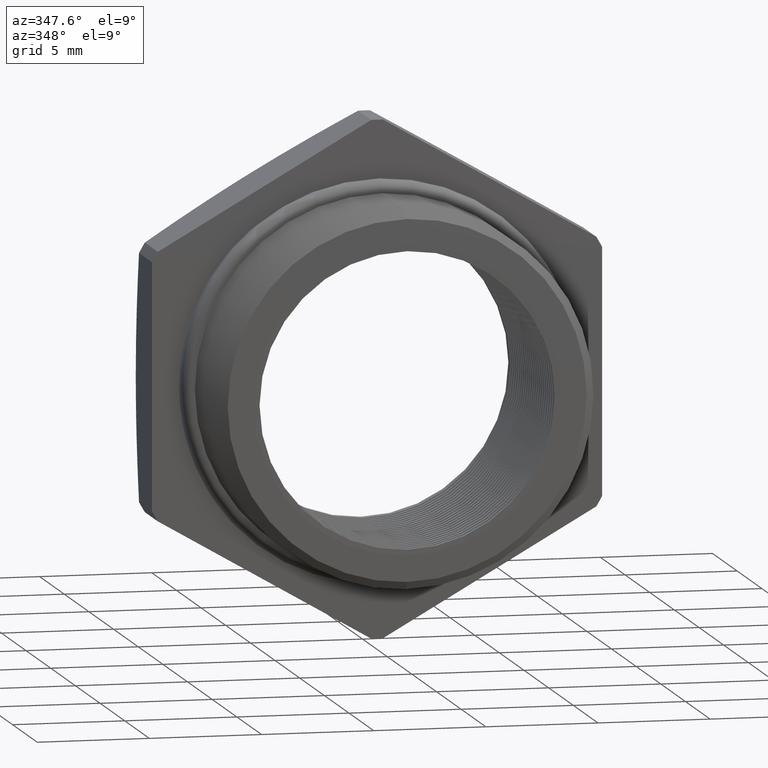
[diagram: clean part render]
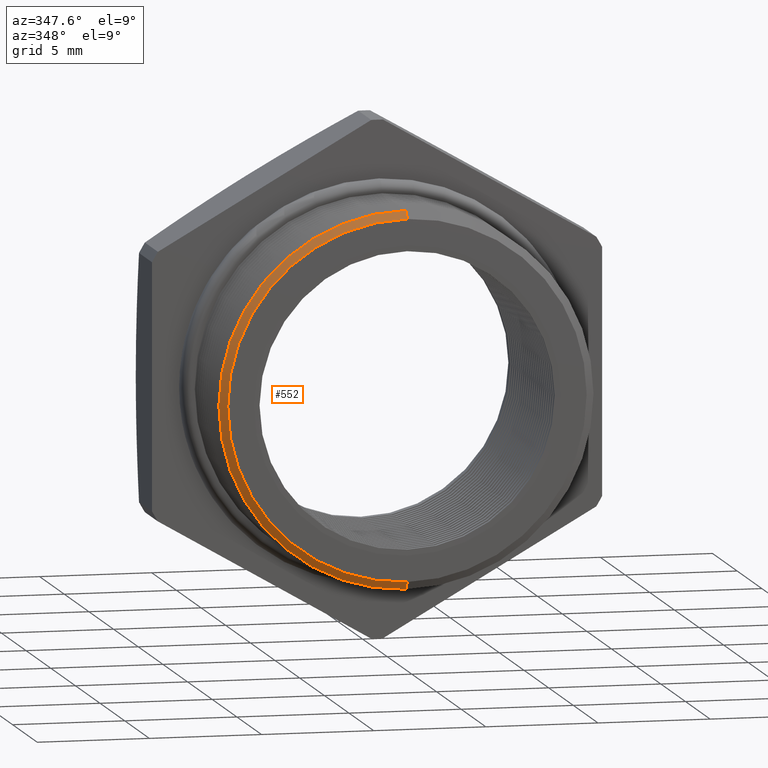
[diagram: same view with one face highlighted and labeled with its STEP entity id]
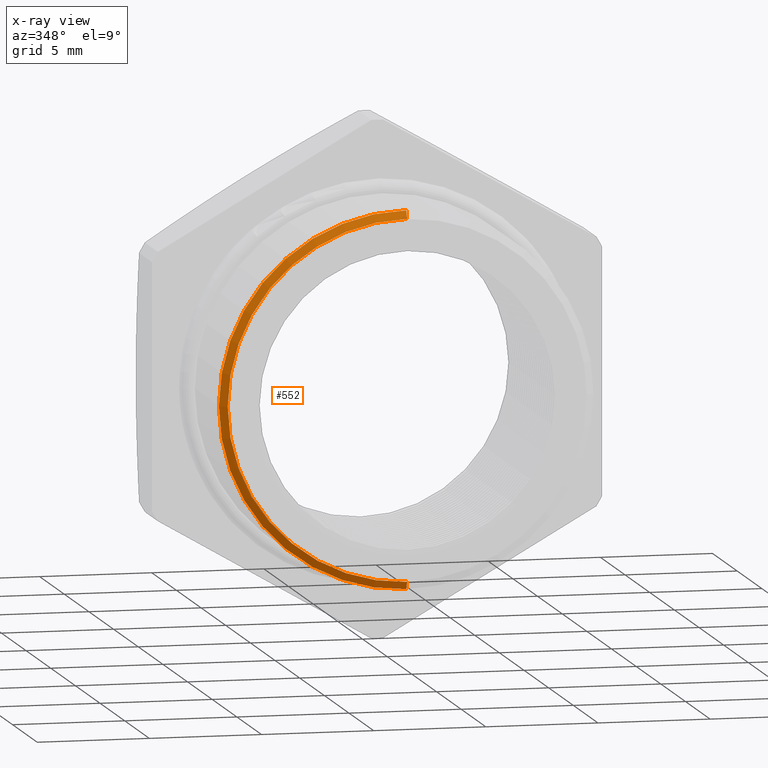
[diagram: x-ray of the same camera — body ghosted, the highlighted face saturated]
A machine part, auxiliary view. The second image highlights one B-rep face of the part: STEP entity #552.
The next image is the same camera in x-ray: the body ghosted, the highlighted face saturated — about 0% of this face is hidden behind the body in this view.
In plain terms, the highlighted conical surface has half-angle 60 deg.
Its self-contained STEP definition (entity closure, byte-faithful):
#457 = ORIENTED_EDGE ( 'NONE', *, *, #1993, .T. ) ;
#458 = ORIENTED_EDGE ( 'NONE', *, *, #545, .F. ) ;
#545 = EDGE_CURVE ( 'NONE', #1996, #1999, #6004, .T. ) ;
#552 = ADVANCED_FACE ( 'NONE', ( #6059 ), #6054, .T. ) ;
#553 = EDGE_LOOP ( 'NONE', ( #554, #555, #457, #458 ) ) ;
#554 = ORIENTED_EDGE ( 'NONE', *, *, #2034, .F. ) ;
#555 = ORIENTED_EDGE ( 'NONE', *, *, #2036, .T. ) ;
#1986 = VERTEX_POINT ( 'NONE', #4202 ) ;
#1993 = EDGE_CURVE ( 'NONE', #1986, #1999, #4190, .T. ) ;
#1996 = VERTEX_POINT ( 'NONE', #4239 ) ;
#1997 = VERTEX_POINT ( 'NONE', #4238 ) ;
#1999 = VERTEX_POINT ( 'NONE', #4237 ) ;
#2034 = EDGE_CURVE ( 'NONE', #1997, #1996, #4295, .T. ) ;
#2036 = EDGE_CURVE ( 'NONE', #1997, #1986, #4291, .T. ) ;
#4187 = DIRECTION ( 'NONE',  ( 0.0000000000000000000, 0.4999999999999991100, 0.8660254037844391500 ) ) ;
#4188 = VECTOR ( 'NONE', #4187, 39.37007874015748100 ) ;
#4189 = CARTESIAN_POINT ( 'NONE',  ( 0.0000000000000000000, 0.04543489058294798000, 0.3287738815610546400 ) ) ;
#4190 = LINE ( 'NONE', #4189, #4188 ) ;
#4202 = CARTESIAN_POINT ( 'NONE',  ( 0.0000000000000000000, 0.03748253635588706700, 0.3150000000000000000 ) ) ;
#4237 = CARTESIAN_POINT ( 'NONE',  ( 4.026318816969966200E-017, 0.04543489058294798000, 0.3287738815610546400 ) ) ;
#4238 = CARTESIAN_POINT ( 'NONE',  ( 3.857637417314162700E-017, 0.03748253635588706700, -0.3150000000000000000 ) ) ;
#4239 = CARTESIAN_POINT ( 'NONE',  ( 0.0000000000000000000, 0.04543489058294798000, -0.3287738815610546400 ) ) ;
#4287 = DIRECTION ( 'NONE',  ( 0.0000000000000000000, 0.0000000000000000000, 1.000000000000000000 ) ) ;
#4288 = DIRECTION ( 'NONE',  ( -0.0000000000000000000, 1.000000000000000000, -0.0000000000000000000 ) ) ;
#4289 = CARTESIAN_POINT ( 'NONE',  ( 0.0000000000000000000, 0.03748253635588706700, 0.0000000000000000000 ) ) ;
#4290 = AXIS2_PLACEMENT_3D ( 'NONE', #4289, #4288, #4287 ) ;
#4291 = CIRCLE ( 'NONE', #4290, 0.3150000000000000000 ) ;
#4292 = DIRECTION ( 'NONE',  ( 1.060575238724907500E-016, 0.4999999999999991100, -0.8660254037844391500 ) ) ;
#4293 = VECTOR ( 'NONE', #4292, 39.37007874015748100 ) ;
#4294 = CARTESIAN_POINT ( 'NONE',  ( 4.026318816969965600E-017, 0.04543489058294798000, -0.3287738815610546400 ) ) ;
#4295 = LINE ( 'NONE', #4294, #4293 ) ;
#6000 = DIRECTION ( 'NONE',  ( 0.0000000000000000000, 0.0000000000000000000, 1.000000000000000000 ) ) ;
#6001 = DIRECTION ( 'NONE',  ( -0.0000000000000000000, 1.000000000000000000, -0.0000000000000000000 ) ) ;
#6002 = CARTESIAN_POINT ( 'NONE',  ( 0.0000000000000000000, 0.04543489058294798000, 0.0000000000000000000 ) ) ;
#6003 = AXIS2_PLACEMENT_3D ( 'NONE', #6002, #6001, #6000 ) ;
#6004 = CIRCLE ( 'NONE', #6003, 0.3287738815610546400 ) ;
#6049 = DIRECTION ( 'NONE',  ( 0.0000000000000000000, 0.0000000000000000000, 1.000000000000000000 ) ) ;
#6050 = DIRECTION ( 'NONE',  ( -0.0000000000000000000, 1.000000000000000000, -0.0000000000000000000 ) ) ;
#6051 = CARTESIAN_POINT ( 'NONE',  ( 0.0000000000000000000, 0.04543489058294798000, 0.0000000000000000000 ) ) ;
#6052 = AXIS2_PLACEMENT_3D ( 'NONE', #6051, #6050, #6049 ) ;
#6054 = CONICAL_SURFACE ( 'NONE', #6052, 0.3287738815610546400, 1.047197551196598700 ) ;
#6059 = FACE_OUTER_BOUND ( 'NONE', #553, .T. ) ;